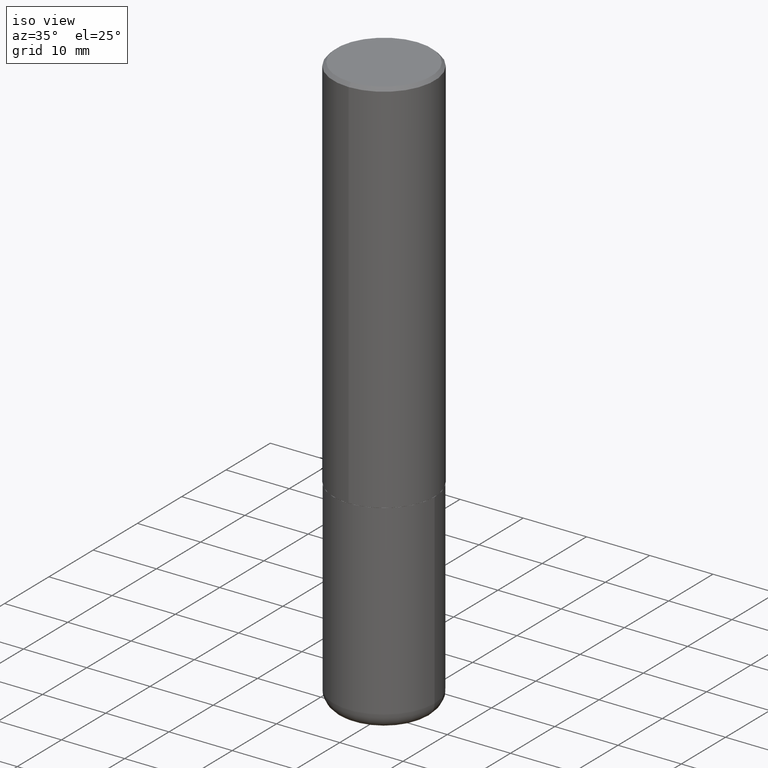
[diagram: clean part render]
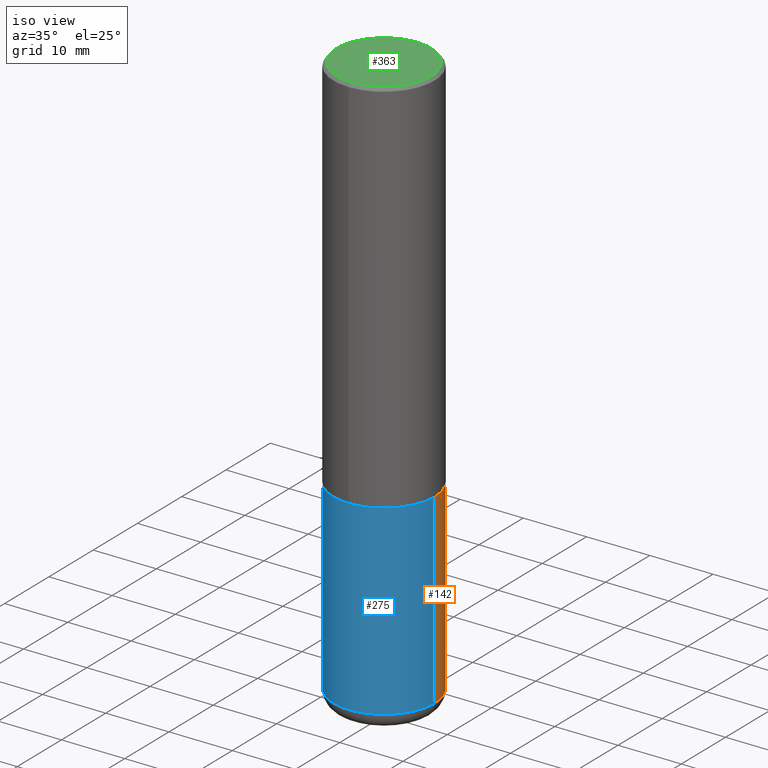
[diagram: same view with three faces highlighted in distinct colors, each labeled with its STEP entity id]
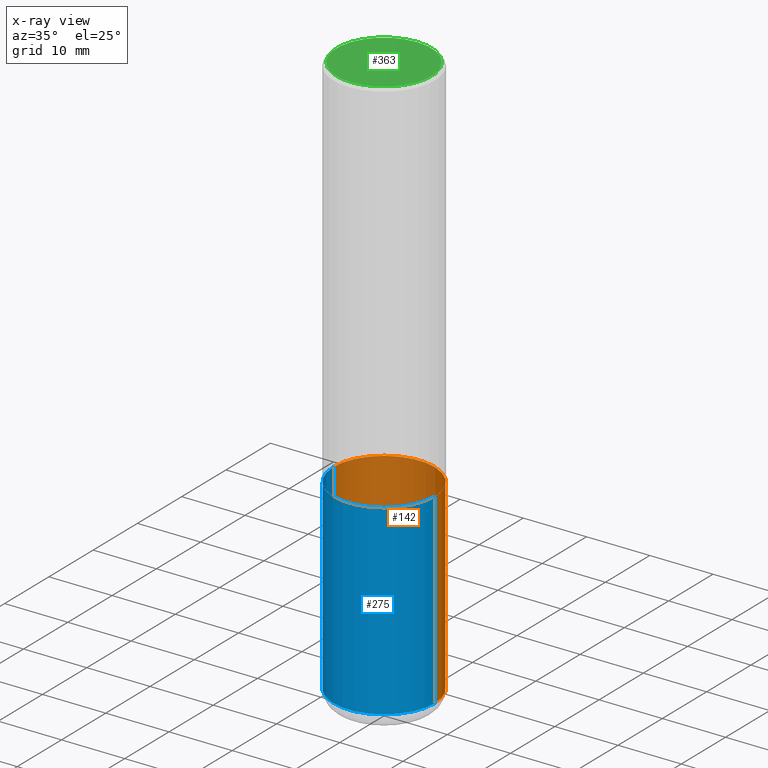
[diagram: x-ray of the same camera — body ghosted, the three highlighted faces saturated]
A machine part, iso view with three faces highlighted in distinct colors.
The next image is the same camera in x-ray (body ghosted, the three faces saturated) — at least one of them is partly hidden behind the body in this view.
Their STEP definitions:

[orange] entity #142 — the highlighted cylindrical surface (partial cylindrical patch) has radius 7.9997 mm, axis along (-0, 0, 1).
#10 = DIRECTION ( 'NONE',  ( 1.000000000000000000, -6.982962677686266711E-15, 4.876176775795936353E-29 ) ) ;
#22 = ORIENTED_EDGE ( 'NONE', *, *, #136, .T. ) ;
#24 = VERTEX_POINT ( 'NONE', #219 ) ;
#35 = VERTEX_POINT ( 'NONE', #380 ) ;
#43 = AXIS2_PLACEMENT_3D ( 'NONE', #110, #335, #10 ) ;
#45 = CARTESIAN_POINT ( 'NONE',  ( -0.3149500000000000077, 2.237854346276435590E-15, -1.549218606675782676E-29 ) ) ;
#56 = EDGE_CURVE ( 'NONE', #24, #35, #127, .T. ) ;
#69 = CARTESIAN_POINT ( 'NONE',  ( -0.3149499999999999522, -1.006472929927126990E-14, -3.523599999999999621 ) ) ;
#74 = DIRECTION ( 'NONE',  ( 1.000000000000000000, -6.982962677686269866E-15, 0.000000000000000000 ) ) ;
#79 = LINE ( 'NONE', #45, #350 ) ;
#85 = DIRECTION ( 'NONE',  ( 1.000000000000000000, -6.982962677686266711E-15, 0.000000000000000000 ) ) ;
#86 = VECTOR ( 'NONE', #184, 39.37007874015748143 ) ;
#89 = CARTESIAN_POINT ( 'NONE',  ( 8.616853885473946211E-29, -1.230258364554770589E-14, -3.523599999999999621 ) ) ;
#102 = AXIS2_PLACEMENT_3D ( 'NONE', #89, #217, #74 ) ;
#109 = ORIENTED_EDGE ( 'NONE', *, *, #56, .F. ) ;
#110 = CARTESIAN_POINT ( 'NONE',  ( 0.000000000000000000, 0.000000000000000000, 0.000000000000000000 ) ) ;
#127 = LINE ( 'NONE', #257, #86 ) ;
#136 = EDGE_CURVE ( 'NONE', #24, #239, #228, .T. ) ;
#141 = CARTESIAN_POINT ( 'NONE',  ( 5.776686413970529753E-29, -8.247577218615278049E-15, -2.362199999999999633 ) ) ;
#142 = ADVANCED_FACE ( 'NONE', ( #364 ), #201, .T. ) ;
#151 = VERTEX_POINT ( 'NONE', #361 ) ;
#157 = AXIS2_PLACEMENT_3D ( 'NONE', #141, #271, #85 ) ;
#174 = DIRECTION ( 'NONE',  ( -2.445468806185136877E-29, 3.491481338843145188E-15, 1.000000000000000000 ) ) ;
#178 = EDGE_CURVE ( 'NONE', #239, #151, #79, .T. ) ;
#184 = DIRECTION ( 'NONE',  ( -2.445468806185136877E-29, 3.491481338843145188E-15, 1.000000000000000000 ) ) ;
#201 = CYLINDRICAL_SURFACE ( 'NONE', #43, 0.3149500000000000077 ) ;
#211 = ORIENTED_EDGE ( 'NONE', *, *, #178, .T. ) ;
#217 = DIRECTION ( 'NONE',  ( -2.445468806185136597E-29, 3.491481338843145583E-15, 1.000000000000000000 ) ) ;
#219 = CARTESIAN_POINT ( 'NONE',  ( 0.3149499999999999522, -1.450186774088499734E-14, -3.523599999999999621 ) ) ;
#228 = CIRCLE ( 'NONE', #102, 0.3149500000000000077 ) ;
#239 = VERTEX_POINT ( 'NONE', #69 ) ;
#244 = ORIENTED_EDGE ( 'NONE', *, *, #296, .F. ) ;
#257 = CARTESIAN_POINT ( 'NONE',  ( 0.3149500000000000077, -2.199284095337289871E-15, 1.535751875536930130E-29 ) ) ;
#271 = DIRECTION ( 'NONE',  ( -2.445468806185136597E-29, 3.491481338843145583E-15, 1.000000000000000000 ) ) ;
#296 = EDGE_CURVE ( 'NONE', #35, #151, #406, .T. ) ;
#335 = DIRECTION ( 'NONE',  ( -2.445468806185136597E-29, 3.491481338843145583E-15, 1.000000000000000000 ) ) ;
#350 = VECTOR ( 'NONE', #174, 39.37007874015748143 ) ;
#361 = CARTESIAN_POINT ( 'NONE',  ( -0.3149500000000000077, -8.037226085805055984E-15, -2.362199999999999633 ) ) ;
#364 = FACE_OUTER_BOUND ( 'NONE', #375, .T. ) ;
#375 = EDGE_LOOP ( 'NONE', ( #22, #211, #244, #109 ) ) ;
#380 = CARTESIAN_POINT ( 'NONE',  ( 0.3149500000000000077, -1.044686131395256792E-14, -2.362199999999999633 ) ) ;
#406 = CIRCLE ( 'NONE', #157, 0.3149500000000000077 ) ;

[blue] entity #275 — the highlighted cylindrical surface (partial cylindrical patch) has radius 7.9997 mm, axis along (-0, 0, 1).
#7 = DIRECTION ( 'NONE',  ( 1.000000000000000000, -6.982962677686266711E-15, 4.876176775795936353E-29 ) ) ;
#24 = VERTEX_POINT ( 'NONE', #219 ) ;
#35 = VERTEX_POINT ( 'NONE', #380 ) ;
#45 = CARTESIAN_POINT ( 'NONE',  ( -0.3149500000000000077, 2.237854346276435590E-15, -1.549218606675782676E-29 ) ) ;
#46 = CARTESIAN_POINT ( 'NONE',  ( 0.000000000000000000, 0.000000000000000000, 0.000000000000000000 ) ) ;
#56 = EDGE_CURVE ( 'NONE', #24, #35, #127, .T. ) ;
#62 = EDGE_CURVE ( 'NONE', #151, #35, #247, .T. ) ;
#69 = CARTESIAN_POINT ( 'NONE',  ( -0.3149499999999999522, -1.006472929927126990E-14, -3.523599999999999621 ) ) ;
#70 = AXIS2_PLACEMENT_3D ( 'NONE', #318, #385, #322 ) ;
#79 = LINE ( 'NONE', #45, #350 ) ;
#83 = ORIENTED_EDGE ( 'NONE', *, *, #178, .F. ) ;
#86 = VECTOR ( 'NONE', #184, 39.37007874015748143 ) ;
#111 = ORIENTED_EDGE ( 'NONE', *, *, #398, .T. ) ;
#127 = LINE ( 'NONE', #257, #86 ) ;
#145 = ORIENTED_EDGE ( 'NONE', *, *, #56, .T. ) ;
#151 = VERTEX_POINT ( 'NONE', #361 ) ;
#156 = DIRECTION ( 'NONE',  ( 1.000000000000000000, -6.982962677686269866E-15, 0.000000000000000000 ) ) ;
#174 = DIRECTION ( 'NONE',  ( -2.445468806185136877E-29, 3.491481338843145188E-15, 1.000000000000000000 ) ) ;
#178 = EDGE_CURVE ( 'NONE', #239, #151, #79, .T. ) ;
#184 = DIRECTION ( 'NONE',  ( -2.445468806185136877E-29, 3.491481338843145188E-15, 1.000000000000000000 ) ) ;
#205 = CIRCLE ( 'NONE', #256, 0.3149500000000000077 ) ;
#219 = CARTESIAN_POINT ( 'NONE',  ( 0.3149499999999999522, -1.450186774088499734E-14, -3.523599999999999621 ) ) ;
#232 = FACE_OUTER_BOUND ( 'NONE', #339, .T. ) ;
#239 = VERTEX_POINT ( 'NONE', #69 ) ;
#247 = CIRCLE ( 'NONE', #70, 0.3149500000000000077 ) ;
#251 = DIRECTION ( 'NONE',  ( -2.445468806185136597E-29, 3.491481338843145583E-15, 1.000000000000000000 ) ) ;
#256 = AXIS2_PLACEMENT_3D ( 'NONE', #410, #251, #156 ) ;
#257 = CARTESIAN_POINT ( 'NONE',  ( 0.3149500000000000077, -2.199284095337289871E-15, 1.535751875536930130E-29 ) ) ;
#265 = AXIS2_PLACEMENT_3D ( 'NONE', #46, #306, #7 ) ;
#274 = ORIENTED_EDGE ( 'NONE', *, *, #62, .F. ) ;
#275 = ADVANCED_FACE ( 'NONE', ( #232 ), #297, .T. ) ;
#297 = CYLINDRICAL_SURFACE ( 'NONE', #265, 0.3149500000000000077 ) ;
#306 = DIRECTION ( 'NONE',  ( -2.445468806185136597E-29, 3.491481338843145583E-15, 1.000000000000000000 ) ) ;
#318 = CARTESIAN_POINT ( 'NONE',  ( 5.776686413970529753E-29, -8.247577218615278049E-15, -2.362199999999999633 ) ) ;
#322 = DIRECTION ( 'NONE',  ( 1.000000000000000000, -6.982962677686266711E-15, 0.000000000000000000 ) ) ;
#339 = EDGE_LOOP ( 'NONE', ( #83, #111, #145, #274 ) ) ;
#350 = VECTOR ( 'NONE', #174, 39.37007874015748143 ) ;
#361 = CARTESIAN_POINT ( 'NONE',  ( -0.3149500000000000077, -8.037226085805055984E-15, -2.362199999999999633 ) ) ;
#380 = CARTESIAN_POINT ( 'NONE',  ( 0.3149500000000000077, -1.044686131395256792E-14, -2.362199999999999633 ) ) ;
#385 = DIRECTION ( 'NONE',  ( -2.445468806185136597E-29, 3.491481338843145583E-15, 1.000000000000000000 ) ) ;
#398 = EDGE_CURVE ( 'NONE', #239, #24, #205, .T. ) ;
#410 = CARTESIAN_POINT ( 'NONE',  ( 8.616853885473946211E-29, -1.230258364554770589E-14, -3.523599999999999621 ) ) ;

[green] entity #363 — the highlighted planar face has unit normal (0, -0, -1).
#1 = ORIENTED_EDGE ( 'NONE', *, *, #44, .T. ) ;
#44 = EDGE_CURVE ( 'NONE', #162, #172, #48, .T. ) ;
#48 = CIRCLE ( 'NONE', #269, 0.2949499999999999345 ) ;
#55 = DIRECTION ( 'NONE',  ( 2.446834136232167096E-29, -3.489526108506037109E-15, -1.000000000000000000 ) ) ;
#114 = ORIENTED_EDGE ( 'NONE', *, *, #358, .T. ) ;
#119 = DIRECTION ( 'NONE',  ( -2.446834136232167376E-29, 3.489526108506037109E-15, 1.000000000000000000 ) ) ;
#120 = CARTESIAN_POINT ( 'NONE',  ( 2.059624841783564063E-15, 0.2949499999999999345, -1.010315767092368542E-15 ) ) ;
#138 = CARTESIAN_POINT ( 'NONE',  ( -2.092108864420428031E-15, -0.2949499999999999345, 1.067075642926828942E-15 ) ) ;
#140 = AXIS2_PLACEMENT_3D ( 'NONE', #120, #55, #412 ) ;
#162 = VERTEX_POINT ( 'NONE', #334 ) ;
#172 = VERTEX_POINT ( 'NONE', #138 ) ;
#213 = CARTESIAN_POINT ( 'NONE',  ( -9.258800117337119194E-46, 1.320433790932734238E-31, 3.783991722297353878E-17 ) ) ;
#216 = DIRECTION ( 'NONE',  ( -6.982962677686267499E-15, -1.000000000000000000, 3.489526108506037503E-15 ) ) ;
#269 = AXIS2_PLACEMENT_3D ( 'NONE', #282, #119, #291 ) ;
#270 = AXIS2_PLACEMENT_3D ( 'NONE', #213, #315, #216 ) ;
#282 = CARTESIAN_POINT ( 'NONE',  ( -9.258800117337119194E-46, 1.320433790932734238E-31, 3.783991722297353878E-17 ) ) ;
#283 = PLANE ( 'NONE',  #140 ) ;
#291 = DIRECTION ( 'NONE',  ( -6.982962677686267499E-15, -1.000000000000000000, 3.489526108506037503E-15 ) ) ;
#308 = EDGE_LOOP ( 'NONE', ( #1, #114 ) ) ;
#315 = DIRECTION ( 'NONE',  ( -2.446834136232167376E-29, 3.489526108506037109E-15, 1.000000000000000000 ) ) ;
#334 = CARTESIAN_POINT ( 'NONE',  ( 2.129454468560426967E-15, 0.2949499999999999345, -9.913958084808819386E-16 ) ) ;
#358 = EDGE_CURVE ( 'NONE', #172, #162, #373, .T. ) ;
#363 = ADVANCED_FACE ( 'NONE', ( #417 ), #283, .F. ) ;
#373 = CIRCLE ( 'NONE', #270, 0.2949499999999999345 ) ;
#412 = DIRECTION ( 'NONE',  ( 6.982962677686265922E-15, 1.000000000000000000, -3.489526108506037109E-15 ) ) ;
#417 = FACE_OUTER_BOUND ( 'NONE', #308, .T. ) ;